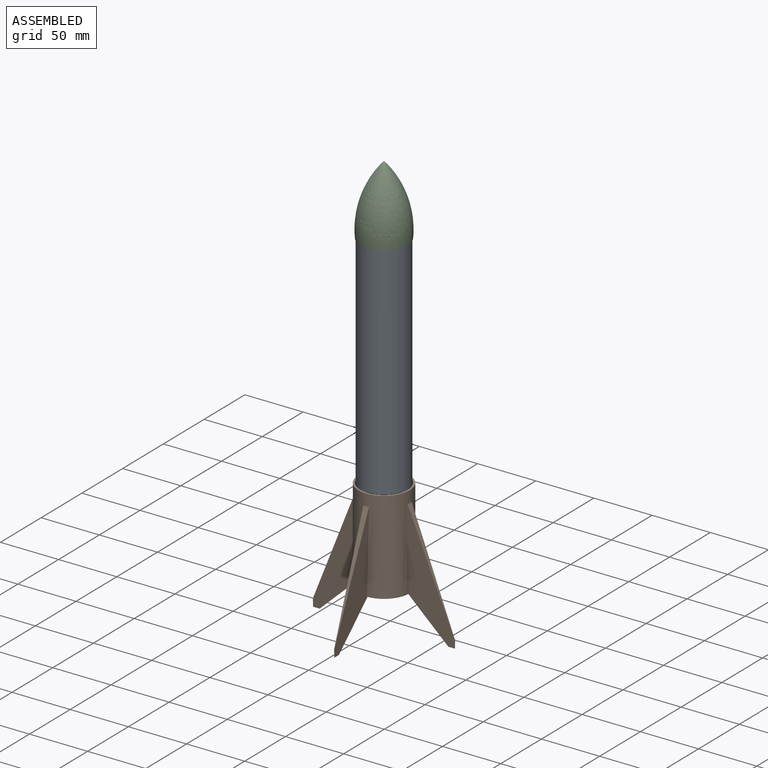
[diagram: assembled view]
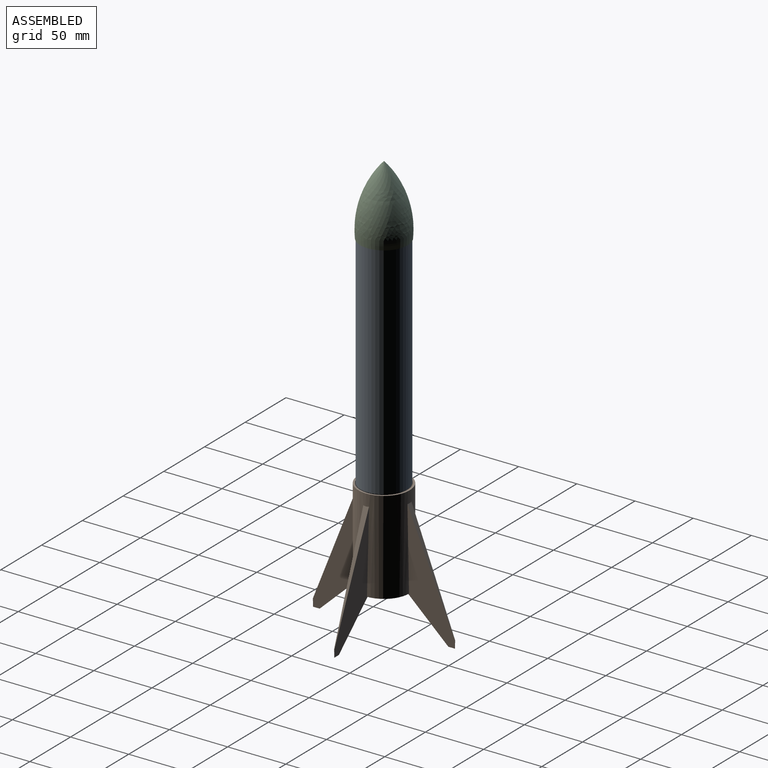
[diagram: assembled view, second angle]
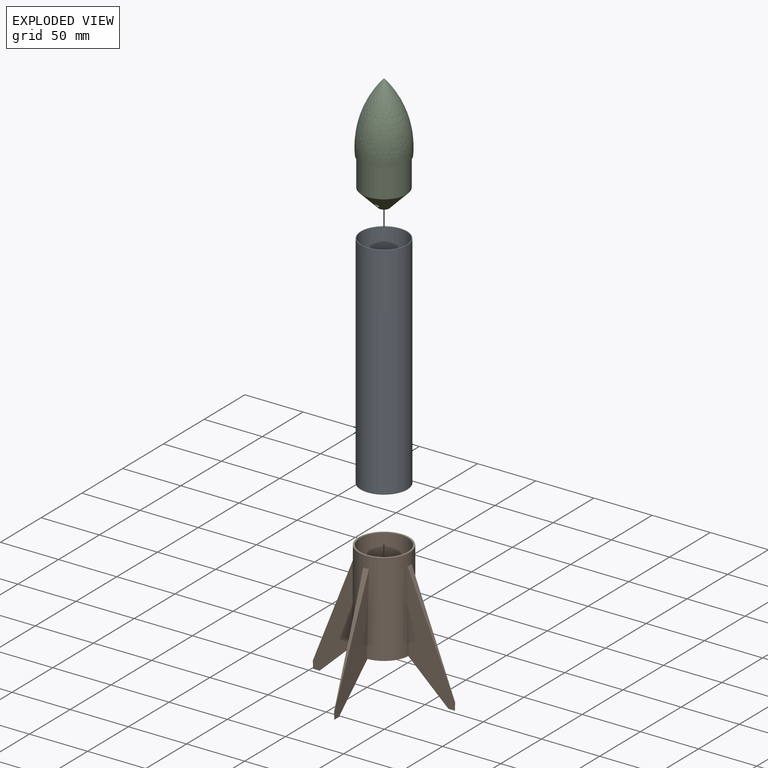
[diagram: exploded view]
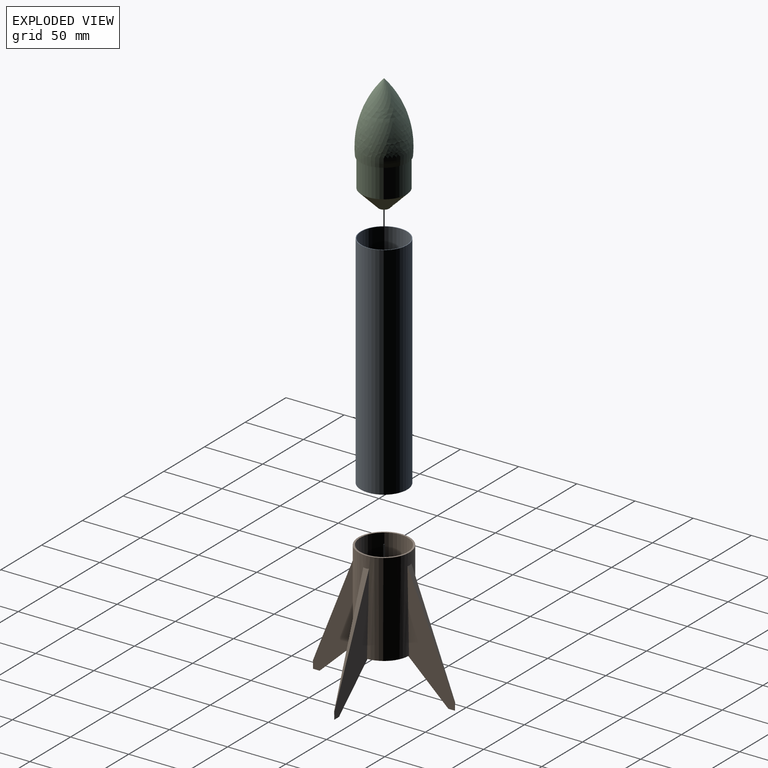
[diagram: exploded view, second angle]
ASSEMBLY  parts=3 mates=2
PART A: 4 faces, bbox 40x40x190 mm
  f0: cylinder r=20mm len=190mm, axis (0,0,-1), area 23876.1mm2, adj f1,f2
  f1: plane 40x40mm, normal (0,0,1), area 62mm2, adj f0,f3
  f2: plane 40x40mm, normal (0,0,-1), area 62mm2, adj f0,f3
  f3: cylinder r=19.5mm len=190mm, axis (0,0,1), area 23279.2mm2, adj f1,f2
PART B: 28 faces, bbox 122x122x112.6 mm
  f0: plane 102.85x40mm, normal (0,1,-0.02), area 1605.7mm2, adj f1,f2,f3,f4,f5,f24,f26
  f1: plane 102.96x39.98mm, normal (0,-1,-0.02), area 1607.5mm2, adj f0,f3,f4,f5,f24,f26
  f2: plane 0.78x0.02mm, normal (1,0,0), area 0mm2, adj f0,f3,f26
  f3: plane 34.3x32.59mm, normal (0.69,-0.02,-0.72), area 36.7mm2, adj f0,f1,f2,f26
  f4: plane 6.56x0.31mm, normal (-1,0,0), area 1mm2, adj f0,f1,f5
  f5: plane 96.41x39.14mm, normal (-0.93,0.01,0.38), area 269.9mm2, adj f0,f1,f4,f24
  f6: plane 102.85x40mm, normal (1,0,-0.02), area 1605.7mm2, adj f7,f8,f9,f10,f11,f24,f26
  f7: plane 102.96x39.98mm, normal (-1,0,-0.02), area 1607.5mm2, adj f6,f9,f10,f11,f24,f26
  f8: plane 0.78x0.02mm, normal (0,-1,0), area 0mm2, adj f6,f9,f26
  f9: plane 34.3x32.59mm, normal (-0.02,-0.69,-0.72), area 36.7mm2, adj f6,f7,f8,f26
  f10: plane 6.56x0.31mm, normal (0,1,0), area 1mm2, adj f6,f7,f11
  f11: plane 96.41x39.14mm, normal (0.01,0.93,0.38), area 269.9mm2, adj f6,f7,f10,f24
  f12: plane 102.85x40mm, normal (0,-1,-0.02), area 1605.7mm2, adj f13,f14,f15,f16,f17,f24,f26
  f13: plane 102.96x39.98mm, normal (0,1,-0.02), area 1607.5mm2, adj f12,f15,f16,f17,f24,f26
  f14: plane 0.78x0.02mm, normal (-1,0,0), area 0mm2, adj f12,f15,f26
  f15: plane 34.3x32.59mm, normal (-0.69,0.02,-0.72), area 36.7mm2, adj f12,f13,f14,f26
  f16: plane 6.56x0.31mm, normal (1,0,0), area 1mm2, adj f12,f13,f17
  f17: plane 96.41x39.14mm, normal (0.93,-0.01,0.38), area 269.9mm2, adj f12,f13,f16,f24
  f18: plane 102.85x40mm, normal (-1,0,-0.02), area 1605.7mm2, adj f19,f20,f21,f22,f23,f24,f26
  f19: plane 102.96x39.98mm, normal (1,0,-0.02), area 1607.5mm2, adj f18,f21,f22,f23,f24,f26
  f20: plane 0.78x0.02mm, normal (0,1,0), area 0mm2, adj f18,f21,f26
  f21: plane 34.3x32.59mm, normal (0.02,0.69,-0.72), area 36.7mm2, adj f18,f19,f20,f26
  f22: plane 6.56x0.31mm, normal (0,-1,0), area 1mm2, adj f18,f19,f23
  f23: plane 96.41x39.14mm, normal (-0.01,-0.93,0.38), area 269.9mm2, adj f18,f19,f22,f24
  f24: cylinder r=22mm len=80mm, axis (0,0,-1), area 10154.2mm2, adj f0,f1,f5,f6,f7,f11,f12,f13
  f25: plane 44x44mm, normal (0,0,1), area 200.3mm2, adj f24,f27
  f26: plane 43.97x43.97mm, normal (0,0,-1), area 194.1mm2, adj f0,f1,f2,f3,f6,f7,f8,f9
  f27: cylinder r=20.5mm len=80mm, axis (0,0,1), area 10304.4mm2, adj f25,f26
PART C: 6 faces, bbox 123x123x122 mm
  f0: cone r=19.5mm half-angle=45deg, axis (0,0,1), area 1572.1mm2, adj f3,f4,f5
  f1: revolved ~41x20.5mm, area 0mm2, adj f2
  f2: plane 123x123mm, normal (0,0,-1), area 125.7mm2, adj f1,f3
  f3: cylinder r=19.5mm len=39mm, axis (0,0,1), area 3063.1mm2, adj f0,f2
  f4: plane 9x9mm, normal (0,0,-1), area 63.6mm2, adj f0
  f5: cylinder r=1.75mm len=21.64mm, axis (0,-1,0), area 197.6mm2, adj f0
PLACE A t=(69.55,143.08,-39.73)mm
PLACE B t=(69.55,143.08,-119.73)mm
PLACE C t=(69.55,143.08,150.27)mm
MATE cylindrical C.f0 <-> A.f3  axis (0,0,-1) through (69.55,143.08,110.27)mm
MATE cylindrical B.f27 <-> A.f3  axis (0,0,1) through (69.55,143.08,-39.73)mm
